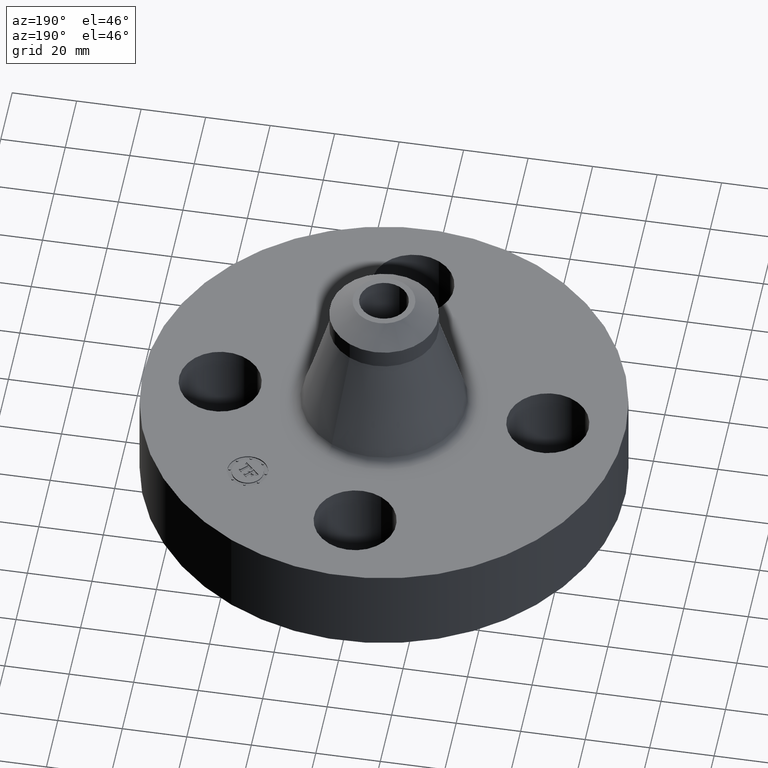
[diagram: clean part render]
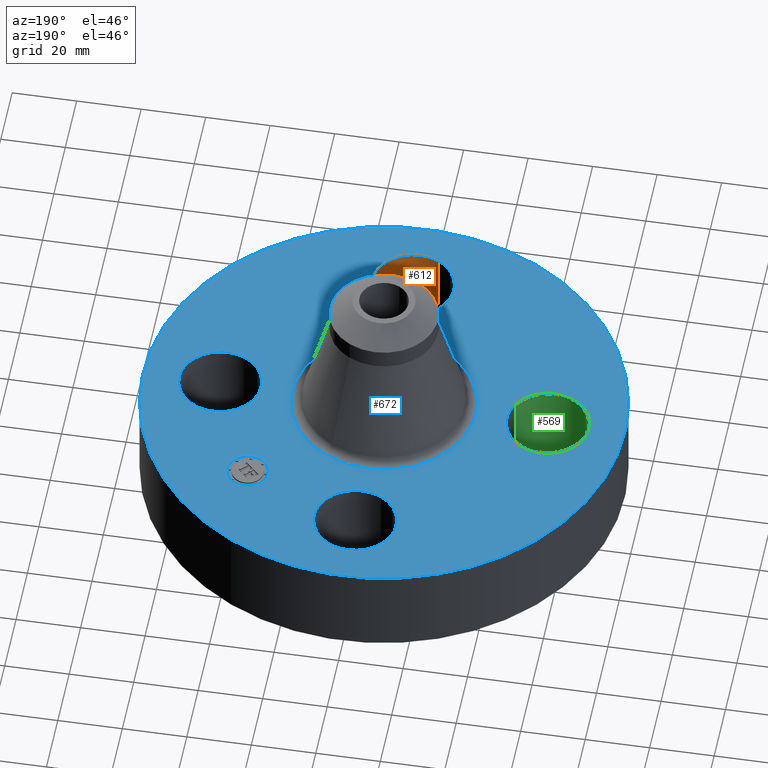
[diagram: same view with three faces highlighted in distinct colors, each labeled with its STEP entity id]
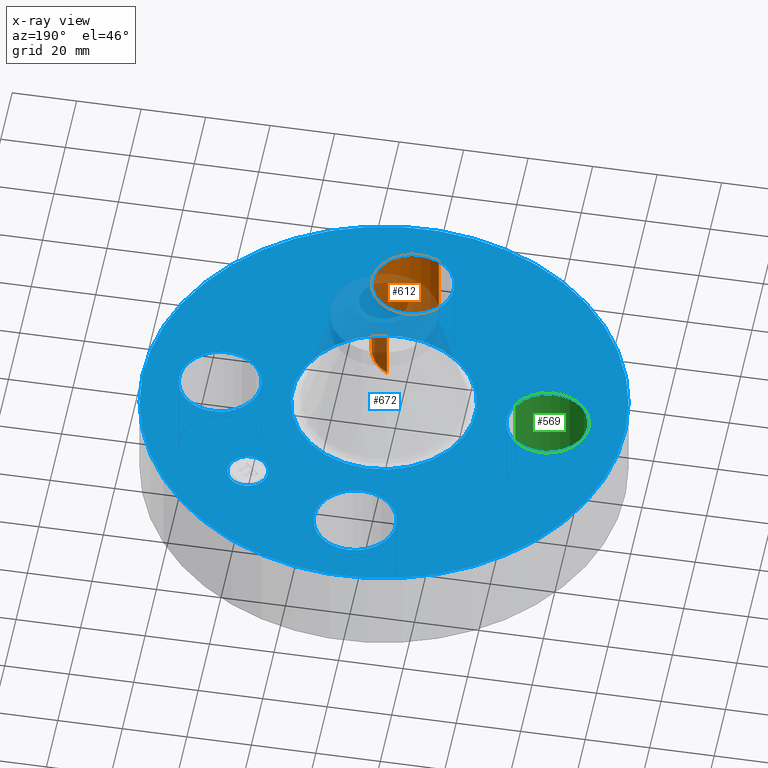
[diagram: x-ray of the same camera — body ghosted, the three highlighted faces saturated]
A machine part, auxiliary view with three faces highlighted in distinct colors.
The next image is the same camera in x-ray (body ghosted, the three faces saturated) — at least one of them is partly hidden behind the body in this view.
Their STEP definitions:

[orange] entity #612 — the highlighted cylindrical surface (partial cylindrical patch) has radius 12.7 mm, axis along (0, -0, -1).
#443=AXIS2_PLACEMENT_3D('Circle Axis2P3D',#441,#442,$) ;
#585=AXIS2_PLACEMENT_3D('Cylinder Axis2P3D',#582,#583,#584) ;
#603=AXIS2_PLACEMENT_3D('Circle Axis2P3D',#601,#602,$) ;
#441=CARTESIAN_POINT('Axis2P3D Location',(-2.09805925913E-016,-2.00000000001,0.)) ;
#445=CARTESIAN_POINT('Vertex',(0.239712769303,-1.56120871906,0.)) ;
#447=CARTESIAN_POINT('Vertex',(-0.239712769303,-2.43879128095,0.)) ;
#582=CARTESIAN_POINT('Axis2P3D Location',(1.22464679915E-016,-2.00000000001,1.11606299213)) ;
#587=CARTESIAN_POINT('Line Origine',(0.239712769303,-1.56120871906,0.560000000002)) ;
#591=CARTESIAN_POINT('Vertex',(0.239712769303,-1.56120871906,1.12)) ;
#594=CARTESIAN_POINT('Line Origine',(-0.239712769303,-2.43879128095,0.560000000002)) ;
#598=CARTESIAN_POINT('Vertex',(-0.239712769303,-2.43879128095,1.12)) ;
#601=CARTESIAN_POINT('Axis2P3D Location',(1.22464679915E-016,-2.00000000001,1.12)) ;
#442=DIRECTION('Axis2P3D Direction',(0.,0.,-0.0393700787402)) ;
#583=DIRECTION('Axis2P3D Direction',(0.,-0.,-0.0393700787402)) ;
#584=DIRECTION('Axis2P3D XDirection',(-0.0188750212049,-0.0345504945626,0.)) ;
#588=DIRECTION('Vector Direction',(0.,0.,-0.0393700787402)) ;
#595=DIRECTION('Vector Direction',(0.,0.,-0.0393700787402)) ;
#602=DIRECTION('Axis2P3D Direction',(0.,-0.,-0.0393700787402)) ;
#589=VECTOR('Line Direction',#588,0.0393700787402) ;
#596=VECTOR('Line Direction',#595,0.0393700787402) ;
#607=ORIENTED_EDGE('',*,*,#593,.F.) ;
#608=ORIENTED_EDGE('',*,*,#449,.T.) ;
#609=ORIENTED_EDGE('',*,*,#600,.T.) ;
#610=ORIENTED_EDGE('',*,*,#605,.F.) ;
#612=ADVANCED_FACE('PartBody',(#611),#586,.F.) ;
#444=CIRCLE('generated circle',#443,0.500000000002) ;
#604=CIRCLE('generated circle',#603,0.500000000002) ;
#586=CYLINDRICAL_SURFACE('generated cylinder',#585,0.500000000002) ;
#449=EDGE_CURVE('',#446,#448,#444,.T.) ;
#593=EDGE_CURVE('',#446,#592,#590,.F.) ;
#600=EDGE_CURVE('',#448,#599,#597,.F.) ;
#605=EDGE_CURVE('',#592,#599,#604,.T.) ;
#606=EDGE_LOOP('',(#607,#608,#609,#610)) ;
#611=FACE_OUTER_BOUND('',#606,.T.) ;
#590=LINE('Line',#587,#589) ;
#597=LINE('Line',#594,#596) ;
#446=VERTEX_POINT('',#445) ;
#448=VERTEX_POINT('',#447) ;
#592=VERTEX_POINT('',#591) ;
#599=VERTEX_POINT('',#598) ;

[blue] entity #672 — the highlighted planar face has unit normal (0, 0, -1).
#65=AXIS2_PLACEMENT_3D('Circle Axis2P3D',#63,#64,$) ;
#82=AXIS2_PLACEMENT_3D('Circle Axis2P3D',#80,#81,$) ;
#115=AXIS2_PLACEMENT_3D('Circle Axis2P3D',#113,#114,$) ;
#139=AXIS2_PLACEMENT_3D('Circle Axis2P3D',#137,#138,$) ;
#156=AXIS2_PLACEMENT_3D('Circle Axis2P3D',#154,#155,$) ;
#191=AXIS2_PLACEMENT_3D('Circle Axis2P3D',#189,#190,$) ;
#517=AXIS2_PLACEMENT_3D('Circle Axis2P3D',#515,#516,$) ;
#529=AXIS2_PLACEMENT_3D('Circle Axis2P3D',#527,#528,$) ;
#560=AXIS2_PLACEMENT_3D('Circle Axis2P3D',#558,#559,$) ;
#572=AXIS2_PLACEMENT_3D('Circle Axis2P3D',#570,#571,$) ;
#603=AXIS2_PLACEMENT_3D('Circle Axis2P3D',#601,#602,$) ;
#615=AXIS2_PLACEMENT_3D('Circle Axis2P3D',#613,#614,$) ;
#628=AXIS2_PLACEMENT_3D('Plane Axis2P3D',#625,#626,#627) ;
#656=AXIS2_PLACEMENT_3D('Circle Axis2P3D',#654,#655,$) ;
#665=AXIS2_PLACEMENT_3D('Circle Axis2P3D',#663,#664,$) ;
#46=CARTESIAN_POINT('Vertex',(1.56120871906,0.239712769303,1.12)) ;
#60=CARTESIAN_POINT('Vertex',(2.43879128095,-0.239712769303,1.12)) ;
#63=CARTESIAN_POINT('Axis2P3D Location',(2.00000000001,0.,1.12)) ;
#80=CARTESIAN_POINT('Axis2P3D Location',(2.00000000001,0.,1.12)) ;
#110=CARTESIAN_POINT('Vertex',(-1.4095110835,-2.58009273197,1.12)) ;
#113=CARTESIAN_POINT('Axis2P3D Location',(0.,0.,1.12)) ;
#117=CARTESIAN_POINT('Vertex',(1.4095110835,2.58009273197,1.12)) ;
#137=CARTESIAN_POINT('Axis2P3D Location',(0.,0.,1.12)) ;
#154=CARTESIAN_POINT('Axis2P3D Location',(0.,0.,1.12)) ;
#158=CARTESIAN_POINT('Vertex',(0.537318936594,0.983555716078,1.12)) ;
#160=CARTESIAN_POINT('Vertex',(-0.537318936594,-0.983555716078,1.12)) ;
#189=CARTESIAN_POINT('Axis2P3D Location',(0.,0.,1.12)) ;
#505=CARTESIAN_POINT('Vertex',(-0.239712769303,1.56120871906,1.12)) ;
#512=CARTESIAN_POINT('Vertex',(0.239712769303,2.43879128095,1.12)) ;
#515=CARTESIAN_POINT('Axis2P3D Location',(-3.67394039746E-016,2.00000000001,1.12)) ;
#527=CARTESIAN_POINT('Axis2P3D Location',(-3.67394039746E-016,2.00000000001,1.12)) ;
#548=CARTESIAN_POINT('Vertex',(-1.56120871906,-0.239712769303,1.12)) ;
#555=CARTESIAN_POINT('Vertex',(-2.43879128095,0.239712769303,1.12)) ;
#558=CARTESIAN_POINT('Axis2P3D Location',(-2.00000000001,-2.4492935983E-016,1.12)) ;
#570=CARTESIAN_POINT('Axis2P3D Location',(-2.00000000001,-2.4492935983E-016,1.12)) ;
#591=CARTESIAN_POINT('Vertex',(0.239712769303,-1.56120871906,1.12)) ;
#598=CARTESIAN_POINT('Vertex',(-0.239712769303,-2.43879128095,1.12)) ;
#601=CARTESIAN_POINT('Axis2P3D Location',(1.22464679915E-016,-2.00000000001,1.12)) ;
#613=CARTESIAN_POINT('Axis2P3D Location',(1.22464679915E-016,-2.00000000001,1.12)) ;
#625=CARTESIAN_POINT('Axis2P3D Location',(0.,2.94000000001,1.12)) ;
#654=CARTESIAN_POINT('Axis2P3D Location',(1.41421356238,1.41421356238,1.12)) ;
#658=CARTESIAN_POINT('Vertex',(1.23920463403,1.58922249072,1.12)) ;
#660=CARTESIAN_POINT('Vertex',(1.58922249072,1.23920463403,1.12)) ;
#663=CARTESIAN_POINT('Axis2P3D Location',(1.41421356238,1.41421356238,1.12)) ;
#64=DIRECTION('Axis2P3D Direction',(0.,-0.,-0.0393700787402)) ;
#81=DIRECTION('Axis2P3D Direction',(0.,-0.,-0.0393700787402)) ;
#114=DIRECTION('Axis2P3D Direction',(0.,0.,-0.0393700787402)) ;
#138=DIRECTION('Axis2P3D Direction',(0.,0.,-0.0393700787402)) ;
#155=DIRECTION('Axis2P3D Direction',(0.,0.,-0.0393700787402)) ;
#190=DIRECTION('Axis2P3D Direction',(0.,0.,-0.0393700787402)) ;
#516=DIRECTION('Axis2P3D Direction',(0.,0.,-0.0393700787402)) ;
#528=DIRECTION('Axis2P3D Direction',(0.,0.,-0.0393700787402)) ;
#559=DIRECTION('Axis2P3D Direction',(-0.,0.,-0.0393700787402)) ;
#571=DIRECTION('Axis2P3D Direction',(-0.,0.,-0.0393700787402)) ;
#602=DIRECTION('Axis2P3D Direction',(0.,-0.,-0.0393700787402)) ;
#614=DIRECTION('Axis2P3D Direction',(0.,-0.,-0.0393700787402)) ;
#626=DIRECTION('Axis2P3D Direction',(0.,0.,-0.0393700787402)) ;
#627=DIRECTION('Axis2P3D XDirection',(0.0393700787402,0.,0.)) ;
#655=DIRECTION('Axis2P3D Direction',(0.,0.,-0.0393700787402)) ;
#664=DIRECTION('Axis2P3D Direction',(0.,0.,-0.0393700787402)) ;
#631=ORIENTED_EDGE('',*,*,#141,.F.) ;
#632=ORIENTED_EDGE('',*,*,#119,.F.) ;
#635=ORIENTED_EDGE('',*,*,#67,.T.) ;
#636=ORIENTED_EDGE('',*,*,#84,.T.) ;
#639=ORIENTED_EDGE('',*,*,#193,.T.) ;
#640=ORIENTED_EDGE('',*,*,#162,.T.) ;
#643=ORIENTED_EDGE('',*,*,#617,.T.) ;
#644=ORIENTED_EDGE('',*,*,#605,.T.) ;
#647=ORIENTED_EDGE('',*,*,#574,.T.) ;
#648=ORIENTED_EDGE('',*,*,#562,.T.) ;
#651=ORIENTED_EDGE('',*,*,#531,.T.) ;
#652=ORIENTED_EDGE('',*,*,#519,.T.) ;
#669=ORIENTED_EDGE('',*,*,#662,.T.) ;
#670=ORIENTED_EDGE('',*,*,#667,.T.) ;
#637=FACE_BOUND('',#634,.T.) ;
#641=FACE_BOUND('',#638,.T.) ;
#645=FACE_BOUND('',#642,.T.) ;
#649=FACE_BOUND('',#646,.T.) ;
#653=FACE_BOUND('',#650,.T.) ;
#671=FACE_BOUND('',#668,.T.) ;
#672=ADVANCED_FACE('PartBody',(#633,#637,#641,#645,#649,#653,#671),#629,.F.) ;
#66=CIRCLE('generated circle',#65,0.500000000002) ;
#83=CIRCLE('generated circle',#82,0.500000000002) ;
#116=CIRCLE('generated circle',#115,2.94000000001) ;
#140=CIRCLE('generated circle',#139,2.94000000001) ;
#157=CIRCLE('generated circle',#156,1.12075576566) ;
#192=CIRCLE('generated circle',#191,1.12075576566) ;
#518=CIRCLE('generated circle',#517,0.500000000002) ;
#530=CIRCLE('generated circle',#529,0.500000000002) ;
#561=CIRCLE('generated circle',#560,0.500000000002) ;
#573=CIRCLE('generated circle',#572,0.500000000002) ;
#604=CIRCLE('generated circle',#603,0.500000000002) ;
#616=CIRCLE('generated circle',#615,0.500000000002) ;
#657=CIRCLE('generated circle',#656,0.247500000001) ;
#666=CIRCLE('generated circle',#665,0.247500000001) ;
#67=EDGE_CURVE('',#47,#61,#66,.T.) ;
#84=EDGE_CURVE('',#61,#47,#83,.T.) ;
#119=EDGE_CURVE('',#111,#118,#116,.T.) ;
#141=EDGE_CURVE('',#118,#111,#140,.T.) ;
#162=EDGE_CURVE('',#159,#161,#157,.T.) ;
#193=EDGE_CURVE('',#161,#159,#192,.T.) ;
#519=EDGE_CURVE('',#506,#513,#518,.T.) ;
#531=EDGE_CURVE('',#513,#506,#530,.T.) ;
#562=EDGE_CURVE('',#549,#556,#561,.T.) ;
#574=EDGE_CURVE('',#556,#549,#573,.T.) ;
#605=EDGE_CURVE('',#592,#599,#604,.T.) ;
#617=EDGE_CURVE('',#599,#592,#616,.T.) ;
#662=EDGE_CURVE('',#659,#661,#657,.T.) ;
#667=EDGE_CURVE('',#661,#659,#666,.T.) ;
#630=EDGE_LOOP('',(#631,#632)) ;
#634=EDGE_LOOP('',(#635,#636)) ;
#638=EDGE_LOOP('',(#639,#640)) ;
#642=EDGE_LOOP('',(#643,#644)) ;
#646=EDGE_LOOP('',(#647,#648)) ;
#650=EDGE_LOOP('',(#651,#652)) ;
#668=EDGE_LOOP('',(#669,#670)) ;
#633=FACE_OUTER_BOUND('',#630,.T.) ;
#629=PLANE('',#628) ;
#47=VERTEX_POINT('',#46) ;
#61=VERTEX_POINT('',#60) ;
#111=VERTEX_POINT('',#110) ;
#118=VERTEX_POINT('',#117) ;
#159=VERTEX_POINT('',#158) ;
#161=VERTEX_POINT('',#160) ;
#506=VERTEX_POINT('',#505) ;
#513=VERTEX_POINT('',#512) ;
#549=VERTEX_POINT('',#548) ;
#556=VERTEX_POINT('',#555) ;
#592=VERTEX_POINT('',#591) ;
#599=VERTEX_POINT('',#598) ;
#659=VERTEX_POINT('',#658) ;
#661=VERTEX_POINT('',#660) ;

[green] entity #569 — the highlighted cylindrical surface (partial cylindrical patch) has radius 12.7 mm, axis along (-0, 0, -1).
#461=AXIS2_PLACEMENT_3D('Circle Axis2P3D',#459,#460,$) ;
#542=AXIS2_PLACEMENT_3D('Cylinder Axis2P3D',#539,#540,#541) ;
#560=AXIS2_PLACEMENT_3D('Circle Axis2P3D',#558,#559,$) ;
#459=CARTESIAN_POINT('Axis2P3D Location',(-2.00000000001,3.49676543189E-017,0.)) ;
#463=CARTESIAN_POINT('Vertex',(-1.56120871906,-0.239712769303,0.)) ;
#465=CARTESIAN_POINT('Vertex',(-2.43879128095,0.239712769303,0.)) ;
#539=CARTESIAN_POINT('Axis2P3D Location',(-2.00000000001,-2.4492935983E-016,1.11606299213)) ;
#544=CARTESIAN_POINT('Line Origine',(-1.56120871906,-0.239712769303,0.560000000002)) ;
#548=CARTESIAN_POINT('Vertex',(-1.56120871906,-0.239712769303,1.12)) ;
#551=CARTESIAN_POINT('Line Origine',(-2.43879128095,0.239712769303,0.560000000002)) ;
#555=CARTESIAN_POINT('Vertex',(-2.43879128095,0.239712769303,1.12)) ;
#558=CARTESIAN_POINT('Axis2P3D Location',(-2.00000000001,-2.4492935983E-016,1.12)) ;
#460=DIRECTION('Axis2P3D Direction',(0.,0.,-0.0393700787402)) ;
#540=DIRECTION('Axis2P3D Direction',(-0.,0.,-0.0393700787402)) ;
#541=DIRECTION('Axis2P3D XDirection',(-0.0345504945626,0.0188750212049,0.)) ;
#545=DIRECTION('Vector Direction',(0.,0.,-0.0393700787402)) ;
#552=DIRECTION('Vector Direction',(0.,0.,-0.0393700787402)) ;
#559=DIRECTION('Axis2P3D Direction',(-0.,0.,-0.0393700787402)) ;
#546=VECTOR('Line Direction',#545,0.0393700787402) ;
#553=VECTOR('Line Direction',#552,0.0393700787402) ;
#564=ORIENTED_EDGE('',*,*,#550,.F.) ;
#565=ORIENTED_EDGE('',*,*,#467,.T.) ;
#566=ORIENTED_EDGE('',*,*,#557,.T.) ;
#567=ORIENTED_EDGE('',*,*,#562,.F.) ;
#569=ADVANCED_FACE('PartBody',(#568),#543,.F.) ;
#462=CIRCLE('generated circle',#461,0.500000000002) ;
#561=CIRCLE('generated circle',#560,0.500000000002) ;
#543=CYLINDRICAL_SURFACE('generated cylinder',#542,0.500000000002) ;
#467=EDGE_CURVE('',#464,#466,#462,.T.) ;
#550=EDGE_CURVE('',#464,#549,#547,.F.) ;
#557=EDGE_CURVE('',#466,#556,#554,.F.) ;
#562=EDGE_CURVE('',#549,#556,#561,.T.) ;
#563=EDGE_LOOP('',(#564,#565,#566,#567)) ;
#568=FACE_OUTER_BOUND('',#563,.T.) ;
#547=LINE('Line',#544,#546) ;
#554=LINE('Line',#551,#553) ;
#464=VERTEX_POINT('',#463) ;
#466=VERTEX_POINT('',#465) ;
#549=VERTEX_POINT('',#548) ;
#556=VERTEX_POINT('',#555) ;